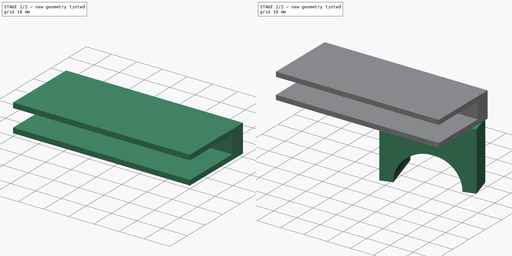
[diagram: build sequence overview — one tinted view per stage of 2, left to right]
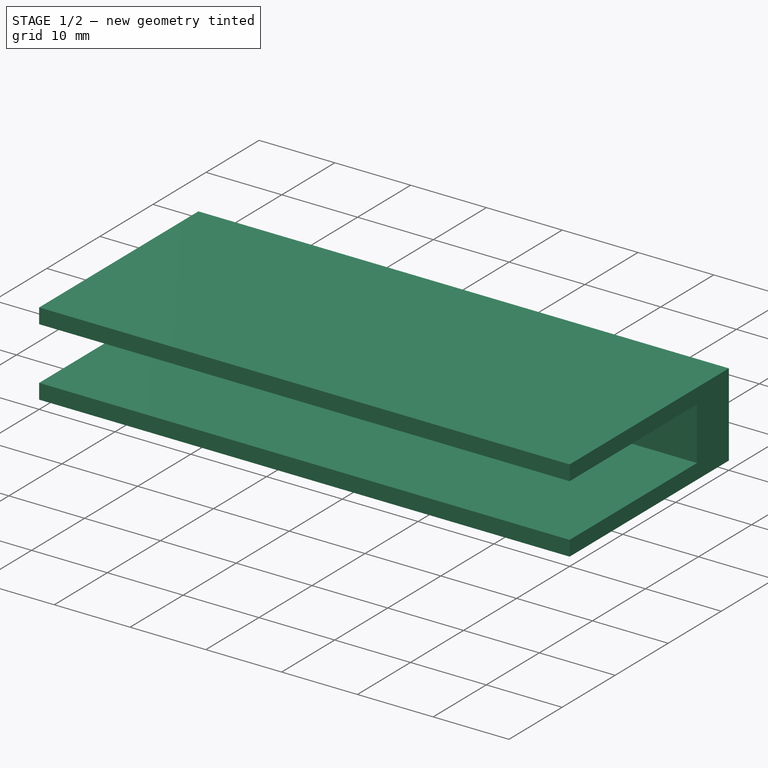
[diagram: stage 1 of 2 — iso view after this stage's code; geometry added in this stage tinted green]
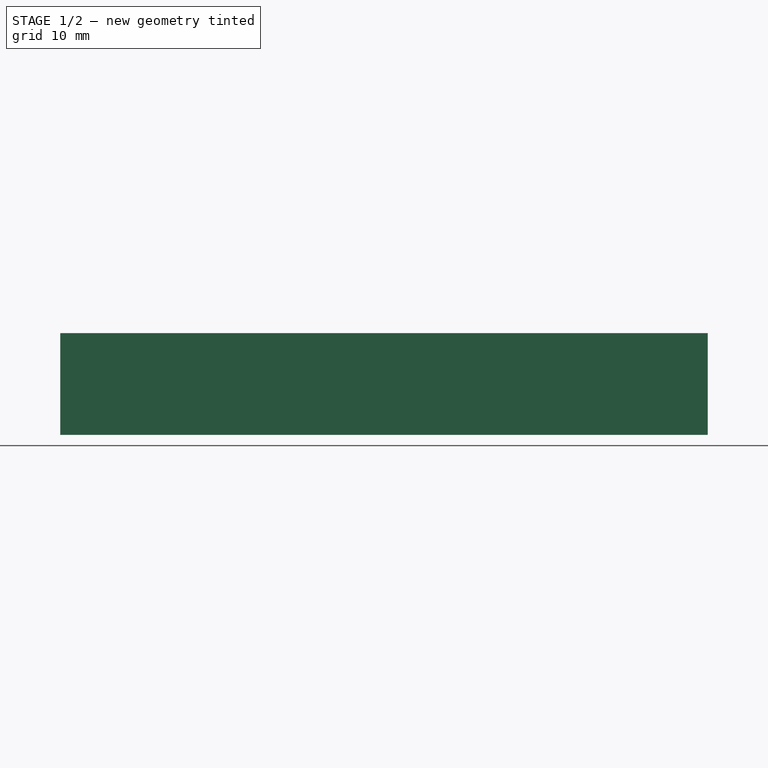
[diagram: stage 1 of 2 — front view after this stage's code; geometry added in this stage tinted green]
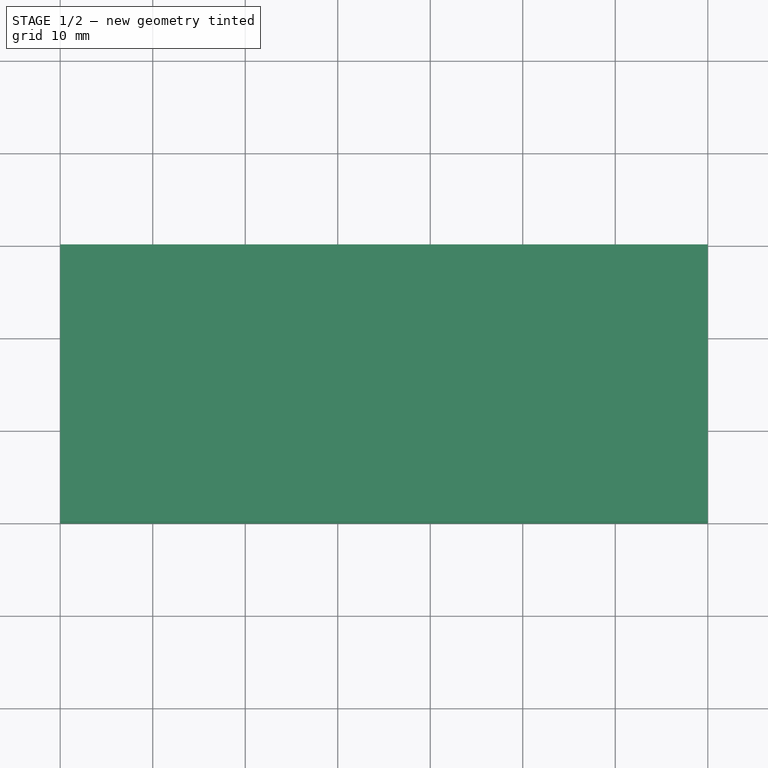
[diagram: stage 1 of 2 — top view after this stage's code; geometry added in this stage tinted green]
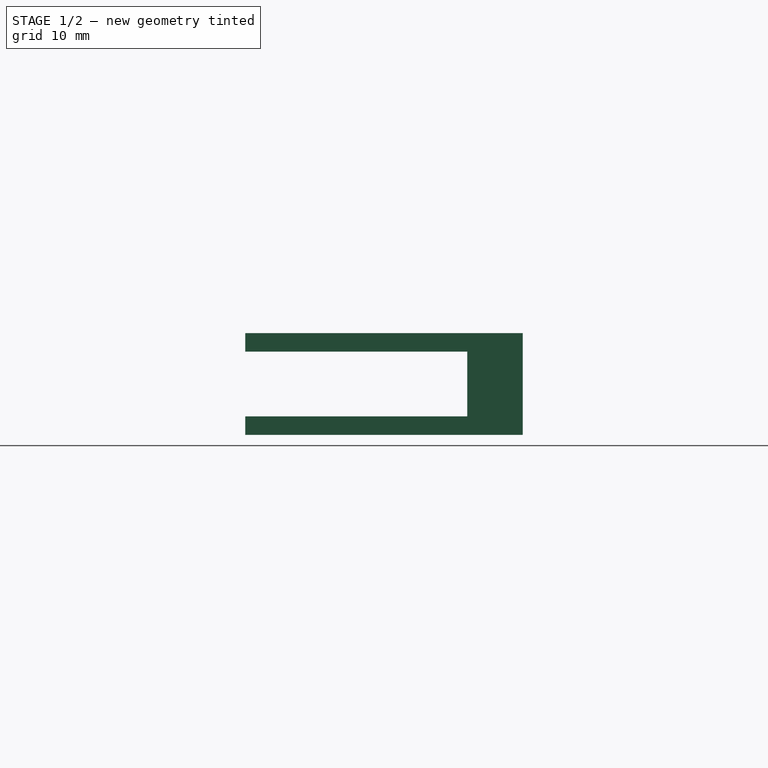
[diagram: stage 1 of 2 — right view after this stage's code; geometry added in this stage tinted green]
FCSTD DOCUMENT  (FreeCAD 0.16R)
Label: Guide6
License: All rights reserved
LicenseURL: http://en.wikipedia.org/wiki/All_rights_reserved
objects: Sketcher::SketchObject×5, PartDesign::Pad×2, PartDesign::Pocket×2
note: 13 computed .brp shape members not serialized (recipe doc carries the construction recipe); baked Part::Feature solids carry a one-line shape summary decoded from their .brp

FEATURE [Sketcher::SketchObject] Sketch
  sketch-geometry (4):
    g0: LineSegment StartX=-70 StartY=0 StartZ=0 EndX=0 EndY=0 EndZ=0
    g1: LineSegment StartX=0 StartY=0 StartZ=0 EndX=0 EndY=-30 EndZ=0
    g2: LineSegment StartX=0 StartY=-30 StartZ=0 EndX=-70 EndY=-30 EndZ=0
    g3: LineSegment StartX=-70 StartY=-30 StartZ=0 EndX=-70 EndY=0 EndZ=0
  constraints (11):
    c: Coincident(g0,g1)
    c: Coincident(g1,g2)
    c: Coincident(g2,g3)
    c: Coincident(g3,g0)
    c: Horizontal(g0)
    c: Horizontal(g2)
    c: Vertical(g1)
    c: Vertical(g3)
    c: Coincident(g0,g-1)
    c: Distance(g3) = 30
    c: Distance(g0) = 70
FEATURE [PartDesign::Pad] Pad
  Length = 11
  Length2 = 100
  Midplane = true
  Sketch = -> Sketch
  Type = 0
FEATURE [Sketcher::SketchObject] Sketch001
  Placement = pos=(0,-30,0) rot=(1,0,0;1.5708rad)
  Support = -> Pad [Face3]
  sketch-geometry (4):
    g0: LineSegment StartX=-95.8323 StartY=3.5 StartZ=0 EndX=18.8197 EndY=3.5 EndZ=0
    g1: LineSegment StartX=18.8197 StartY=3.5 StartZ=0 EndX=18.8197 EndY=-3.5 EndZ=0
    g2: LineSegment StartX=18.8197 StartY=-3.5 StartZ=0 EndX=-95.8323 EndY=-3.5 EndZ=0
    g3: LineSegment StartX=-95.8323 StartY=-3.5 StartZ=0 EndX=-95.8323 EndY=3.5 EndZ=0
  constraints (12):
    c: Coincident(g0,g1)
    c: Coincident(g1,g2)
    c: Coincident(g2,g3)
    c: Coincident(g3,g0)
    c: Horizontal(g0)
    c: Horizontal(g2)
    c: Vertical(g1)
    c: Vertical(g3)
    c: DistanceX(g1) = 18.8197
    c: DistanceX(g2) = -95.8323
    c: Symmetric(g1,g0,g-1)
    c: Distance(g1) = 7
FEATURE [PartDesign::Pocket] Pocket
  Length = 24
  Sketch = -> Sketch001
  Type = 0
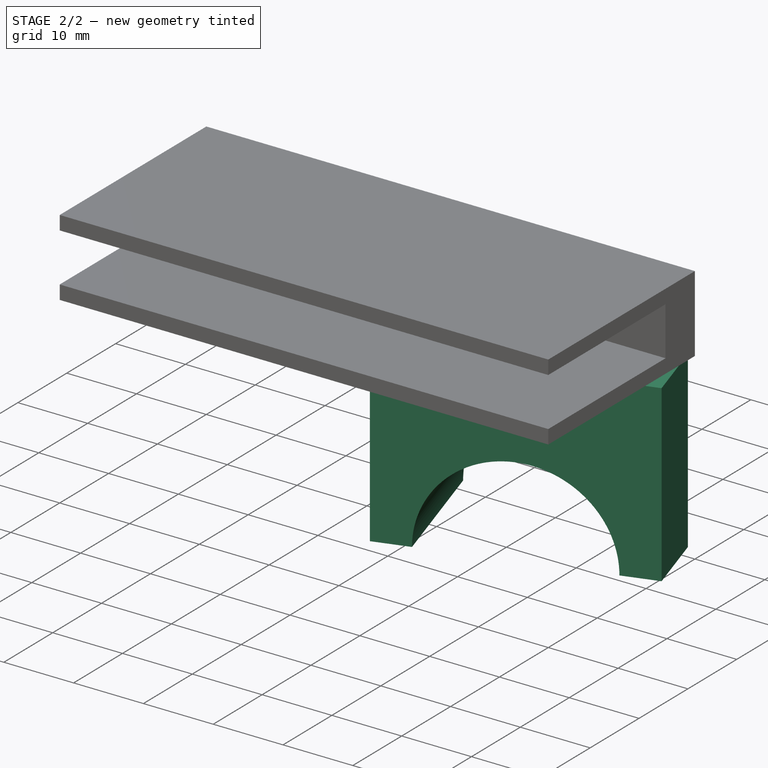
[diagram: stage 2 of 2 — iso view after this stage's code; geometry added in this stage tinted green]
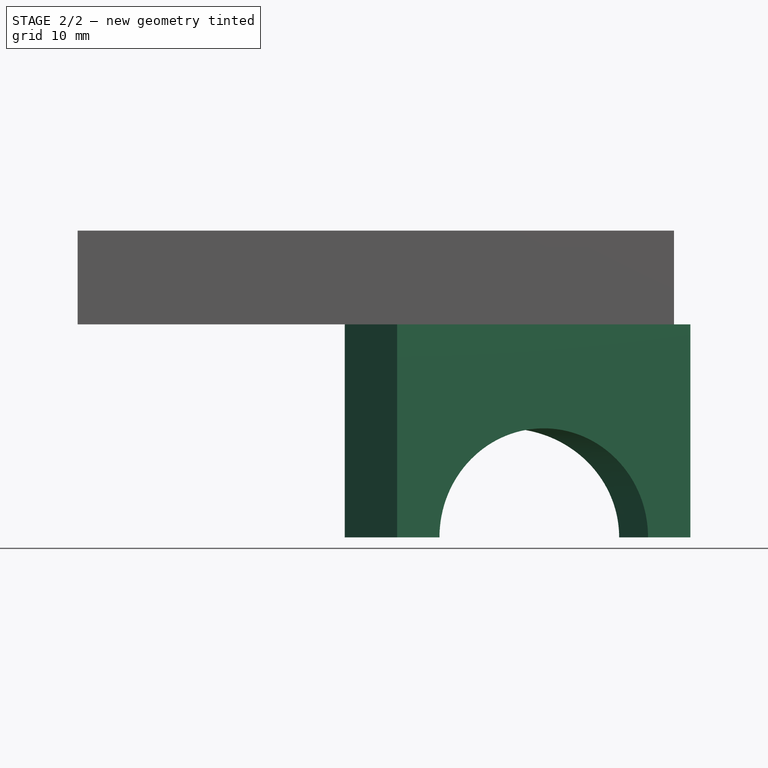
[diagram: stage 2 of 2 — front view after this stage's code; geometry added in this stage tinted green]
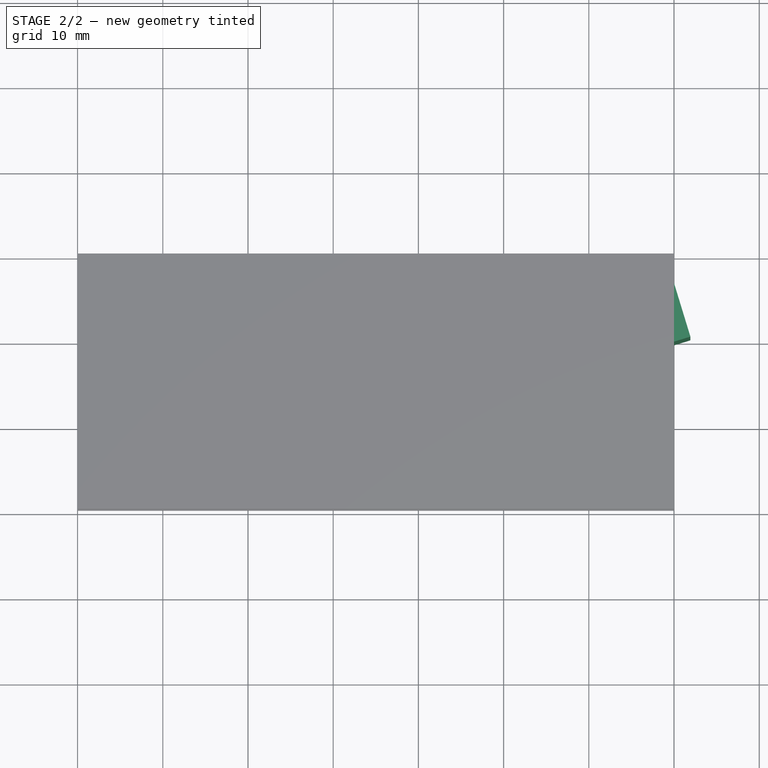
[diagram: stage 2 of 2 — top view after this stage's code; geometry added in this stage tinted green]
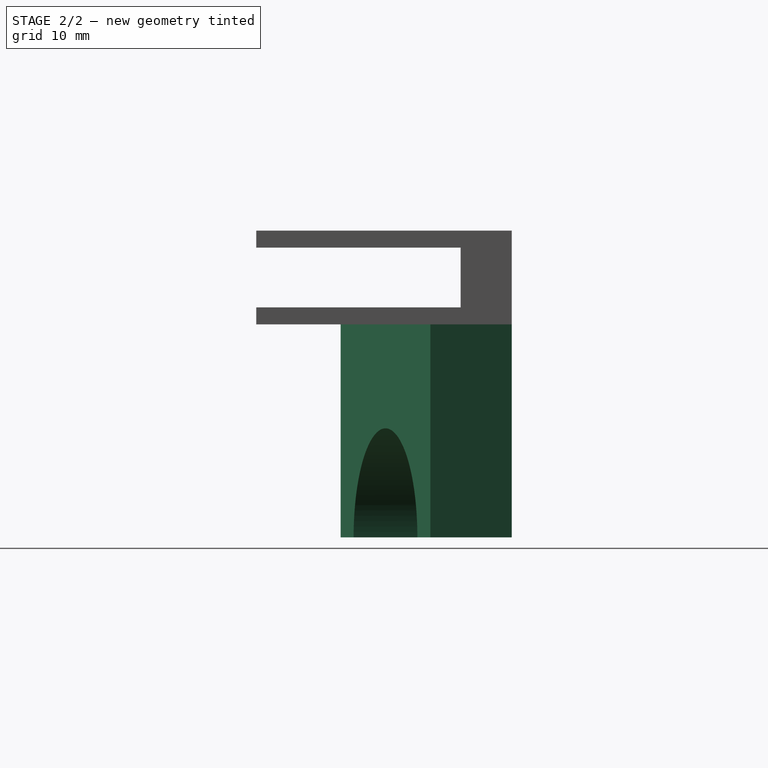
[diagram: stage 2 of 2 — right view after this stage's code; geometry added in this stage tinted green]
FEATURE [Sketcher::SketchObject] Sketch002
  Placement = pos=(0,0,-5.5) rot=(1,0,0;3.14159rad)
  Support = -> Pocket [Face4]
FEATURE [Sketcher::SketchObject] Sketch003
  ExternalGeometry = -> [Pocket]
  Placement = pos=(0,0,-5.5) rot=(1,0,0;3.14159rad)
  Support = -> Pocket [Face4]
  sketch-geometry (7):
    g0: LineSegment StartX=-38.6449 StartY=0 StartZ=0 EndX=-1 EndY=0 EndZ=0
    g1: LineSegment StartX=-1 StartY=0 StartZ=0 EndX=1.92372 EndY=9.56305 EndZ=0
    g2: LineSegment StartX=1.92372 StartY=9.56305 StartZ=0 EndX=-32.5033 EndY=20.0884 EndZ=0
    g3: LineSegment StartX=-32.5033 StartY=20.0884 StartZ=0 EndX=-38.6449 EndY=0 EndZ=0
    g4: LineSegment [constr] StartX=-6.11584 StartY=44.8323 StartZ=0 EndX=-26.2182 EndY=-20.9195 EndZ=0
    g5: LineSegment StartX=-38.6449 StartY=0 StartZ=0 EndX=-1 EndY=0 EndZ=0
    g6: LineSegment StartX=-38.6449 StartY=0 StartZ=0 EndX=-1 EndY=0 EndZ=0
  constraints (21):
    c: Horizontal(g0)
    c: Coincident(g0,g1)
    c: Coincident(g1,g2)
    c: Coincident(g2,g3)
    c: Coincident(g3,g0)
    c: Parallel(g1,g3)
    c: Perpendicular(g3,g2)
    c: Distance(g2) = 36
    c: PointOnObject(g0,g-3)
    c: Perpendicular(g4,g2)
    c: Symmetric(g1,g2,g4)
    c: Distance(g1) = 10
    c: Angle(g4) = -1.8675
    c: DistanceX(g0) = -1
    c: Distance(g4) = 68.7561
    c: DistanceY(g4) = 44.8323
    c: Coincident(g5,g0)
    c: PointOnObject(g5,g-1)
    c: Coincident(g6,g0)
    c: Coincident(g6,g5)
    c: Coincident(g5,g0)
FEATURE [PartDesign::Pad] Pad001
  Length = 25
  Length2 = 100
  Sketch = -> Sketch003
  Type = 0
FEATURE [Sketcher::SketchObject] Sketch004
  ExternalGeometry = -> [Pad001]
  Placement = pos=(2.83824,-9.28345,0) rot=(0.978386,0.146221,0.146221;1.59265rad)
  Support = -> Pad001 [Face11]
  sketch-geometry (1):
    g0: Circle CenterX=-18.9563 CenterY=-30.5 CenterZ=0 NormalX=0 NormalY=0 NormalZ=1 Radius=12.8
  constraints (2):
    c: Symmetric(g-3,g-3,g0)
    c: Radius(g0) = 12.8
FEATURE [PartDesign::Pocket] Pocket001
  Length = 5
  Sketch = -> Sketch004
  Type = 1
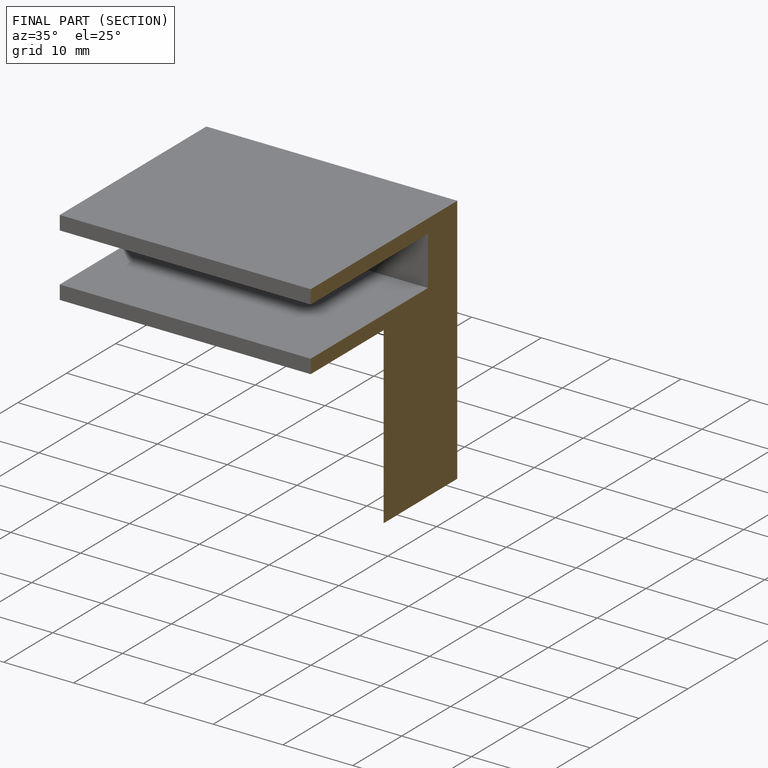
[diagram: finished part — half-section view (interior)]
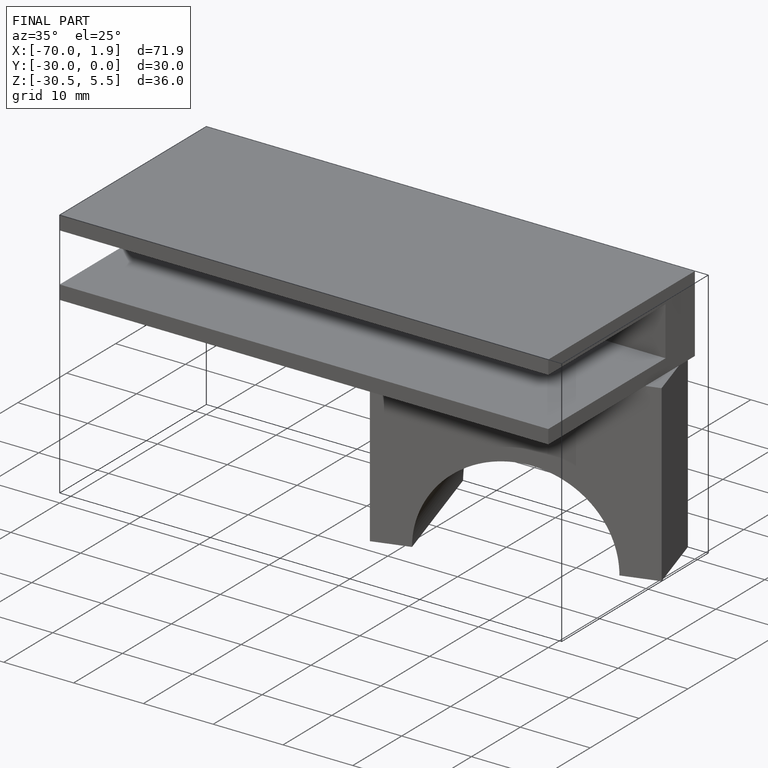
[diagram: finished part — iso view with bounding-box wireframe]
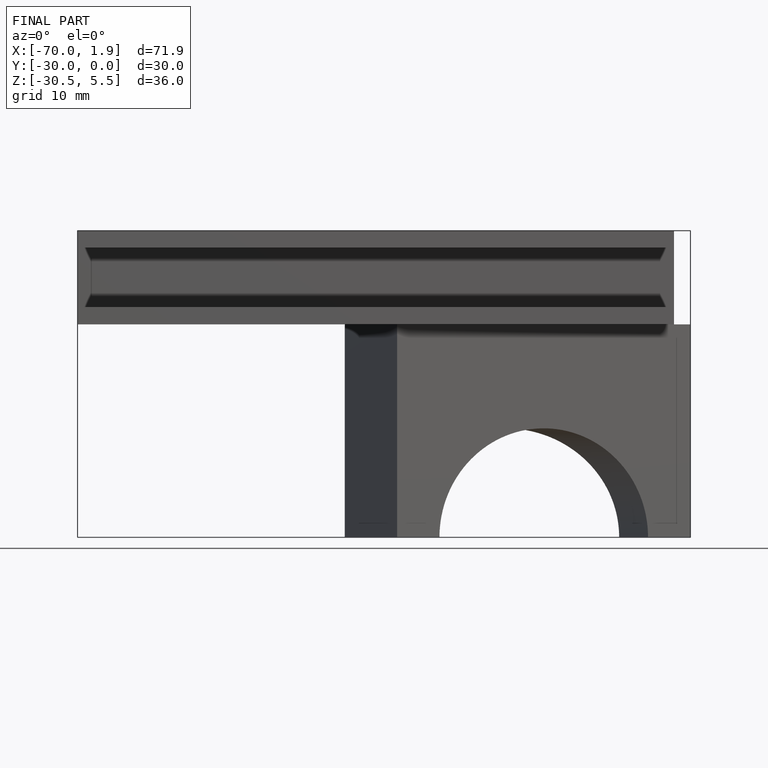
[diagram: finished part — front view with bounding-box wireframe]
